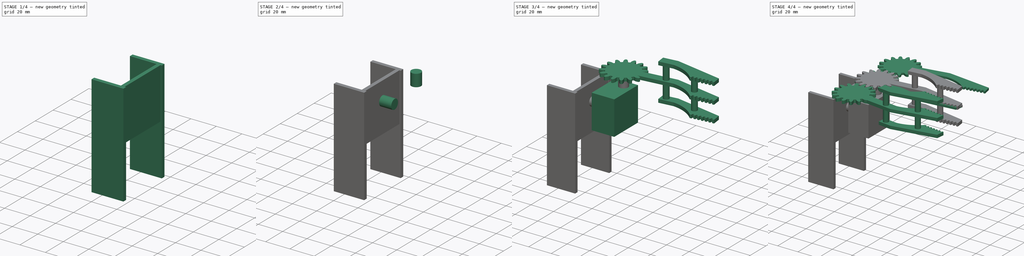
[diagram: build sequence overview — one tinted view per stage of 4, left to right]
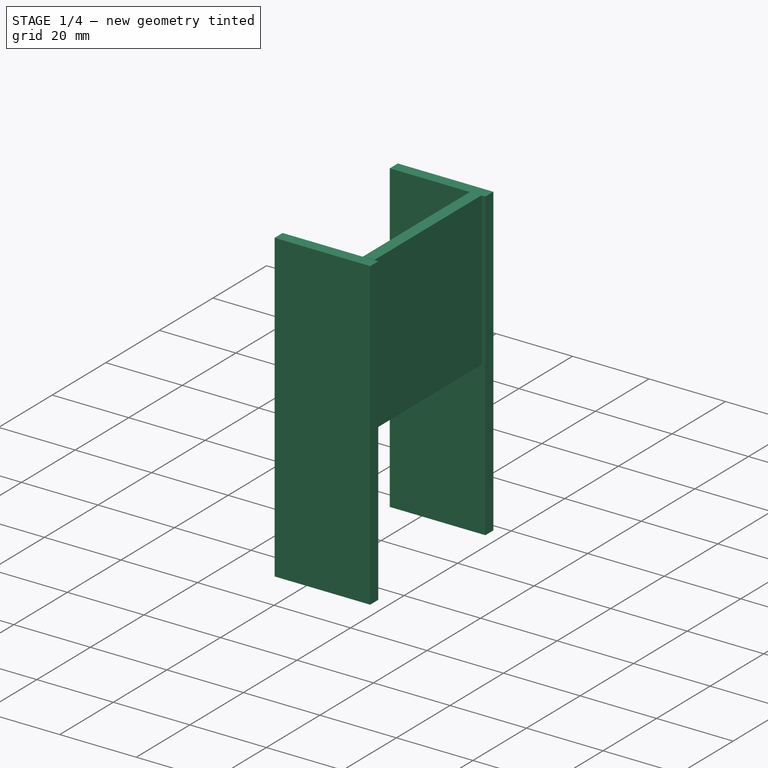
[diagram: stage 1 of 4 — iso view after this stage's code; geometry added in this stage tinted green]
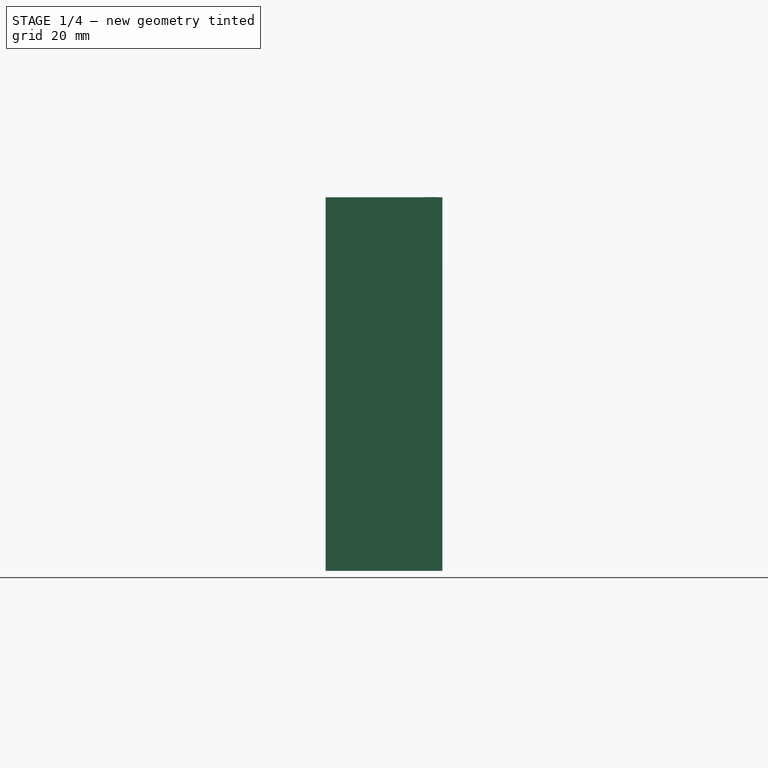
[diagram: stage 1 of 4 — front view after this stage's code; geometry added in this stage tinted green]
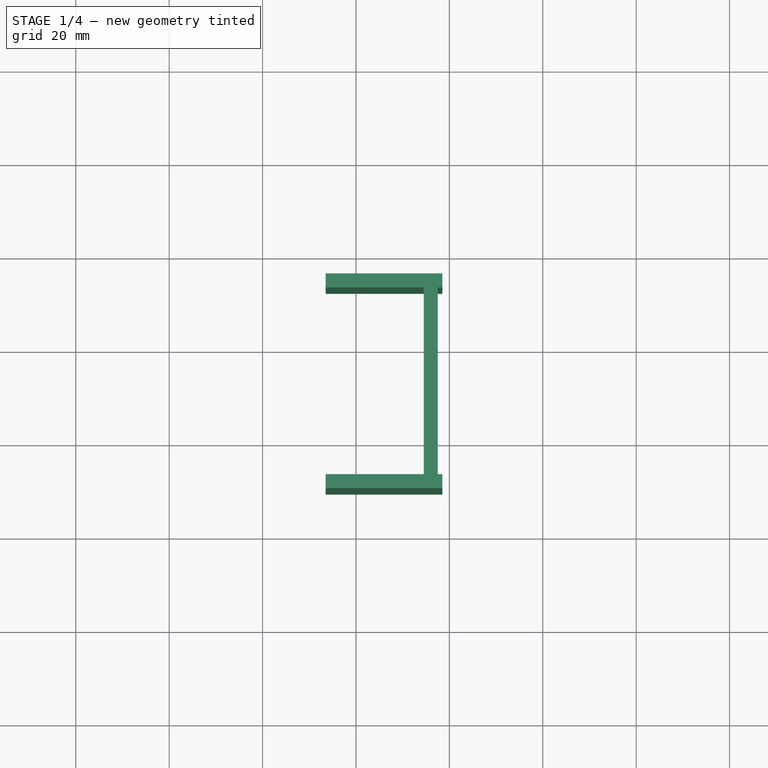
[diagram: stage 1 of 4 — top view after this stage's code; geometry added in this stage tinted green]
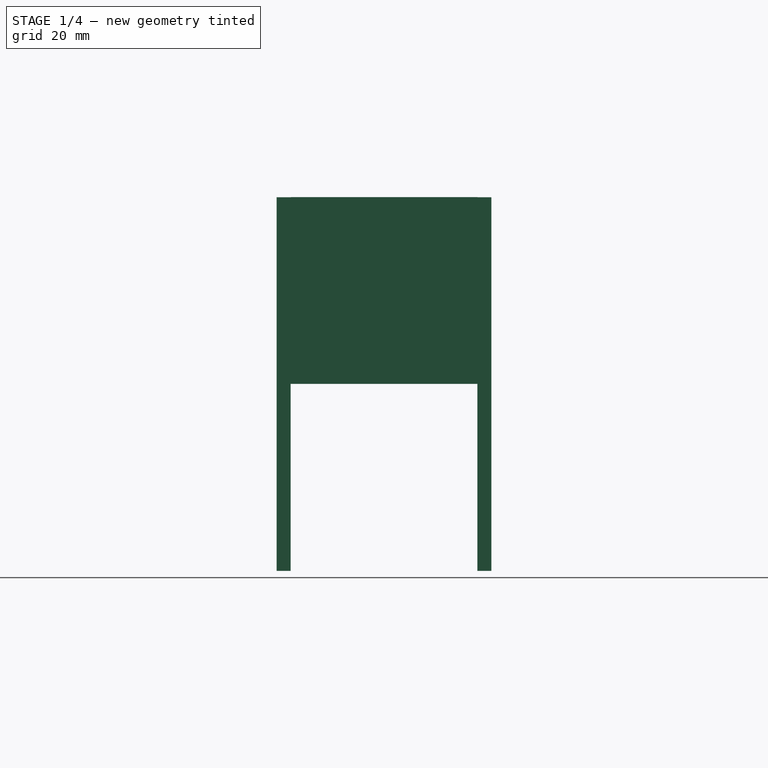
[diagram: stage 1 of 4 — right view after this stage's code; geometry added in this stage tinted green]
FCSTD DOCUMENT  (FreeCAD 0.15R4671 (Git))
Label: robotic_arm
License: All rights reserved
LicenseURL: http://en.wikipedia.org/wiki/All_rights_reserved
objects: Part::MultiFuse×6, Sketcher::SketchObject×6, PartDesign::Pad×6
note: 24 computed .brp shape members not serialized (recipe doc carries the construction recipe); baked Part::Feature solids carry a one-line shape summary decoded from their .brp

FEATURE [Sketcher::SketchObject] Sketch004
  Placement = pos=(-22.5,0,0) rot=(0.57735,-0.57735,-0.57735;2.0944rad)
  sketch-geometry (4):
    g0: LineSegment StartX=-12.5 StartY=-10 StartZ=0 EndX=27.5 EndY=-10 EndZ=0
    g1: LineSegment StartX=27.5 StartY=-10 StartZ=0 EndX=27.5 EndY=-50 EndZ=0
    g2: LineSegment StartX=27.5 StartY=-50 StartZ=0 EndX=-12.5 EndY=-50 EndZ=0
    g3: LineSegment StartX=-12.5 StartY=-50 StartZ=0 EndX=-12.5 EndY=-10 EndZ=0
  constraints (12):
    c: Coincident(g0,g1)
    c: Coincident(g1,g2)
    c: Coincident(g2,g3)
    c: Coincident(g3,g0)
    c: Horizontal(g0)
    c: Horizontal(g2)
    c: Vertical(g1)
    c: Vertical(g3)
    c: DistanceX(g0,g0) = 40
    c: DistanceY(g0,g1) = -40
    c: DistanceY(g-1,g0) = -10
    c: DistanceX(g-1,g0) = -12.5
FEATURE [PartDesign::Pad] Pad003
  Length = 3
  Length2 = 100
  Placement = pos=(-22.5,0,0) rot=(0.57735,-0.57735,-0.57735;2.0944rad)
  Sketch = -> Sketch004
  Type = 0
FEATURE [Sketcher::SketchObject] Sketch005
  Placement = pos=(0,12.5,0) rot=(1,0,0;1.5708rad)
  sketch-geometry (4):
    g0: LineSegment StartX=-21.5 StartY=-10.0415 StartZ=0 EndX=-46.5 EndY=-10.0415 EndZ=0
    g1: LineSegment StartX=-46.5 StartY=-10.0415 StartZ=0 EndX=-46.5 EndY=-90.0415 EndZ=0
    g2: LineSegment StartX=-46.5 StartY=-90.0415 StartZ=0 EndX=-21.5 EndY=-90.0415 EndZ=0
    g3: LineSegment StartX=-21.5 StartY=-90.0415 StartZ=0 EndX=-21.5 EndY=-10.0415 EndZ=0
  constraints (11):
    c: Coincident(g0,g1)
    c: Coincident(g1,g2)
    c: Coincident(g2,g3)
    c: Coincident(g3,g0)
    c: Horizontal(g0)
    c: Horizontal(g2)
    c: Vertical(g1)
    c: Vertical(g3)
    c: DistanceY(g0,g2) = -80
    c: DistanceX(g0,g0) = 25
    c: DistanceX(g-1,g0) = -21.5
FEATURE [Sketcher::SketchObject] Sketch006
  Placement = pos=(0,-27.5,0) rot=(1,0,0;1.5708rad)
  sketch-geometry (4):
    g0: LineSegment StartX=-21.5 StartY=-10.0415 StartZ=0 EndX=-46.5 EndY=-10.0415 EndZ=0
    g1: LineSegment StartX=-46.5 StartY=-10.0415 StartZ=0 EndX=-46.5 EndY=-90.0415 EndZ=0
    g2: LineSegment StartX=-46.5 StartY=-90.0415 StartZ=0 EndX=-21.5 EndY=-90.0415 EndZ=0
    g3: LineSegment StartX=-21.5 StartY=-90.0415 StartZ=0 EndX=-21.5 EndY=-10.0415 EndZ=0
  constraints (11):
    c: Coincident(g0,g1)
    c: Coincident(g1,g2)
    c: Coincident(g2,g3)
    c: Coincident(g3,g0)
    c: Horizontal(g0)
    c: Horizontal(g2)
    c: Vertical(g1)
    c: Vertical(g3)
    c: DistanceY(g0,g2) = -80
    c: DistanceX(g0,g0) = 25
    c: DistanceX(g-1,g0) = -21.5
FEATURE [PartDesign::Pad] Pad004
  Length = 3
  Length2 = 100
  Placement = pos=(0,12.5,0) rot=(1,0,0;1.5708rad)
  Reversed = true
  Sketch = -> Sketch005
  Type = 0
FEATURE [PartDesign::Pad] Pad005
  Length = 3
  Length2 = 100
  Placement = pos=(0,-27.5,0) rot=(1,0,0;1.5708rad)
  Sketch = -> Sketch006
  Type = 0
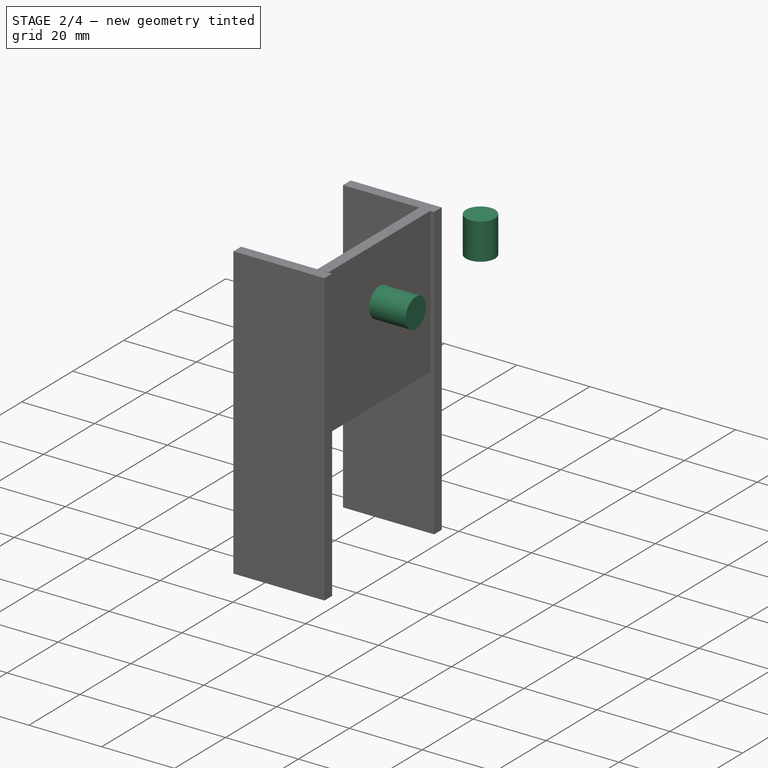
[diagram: stage 2 of 4 — iso view after this stage's code; geometry added in this stage tinted green]
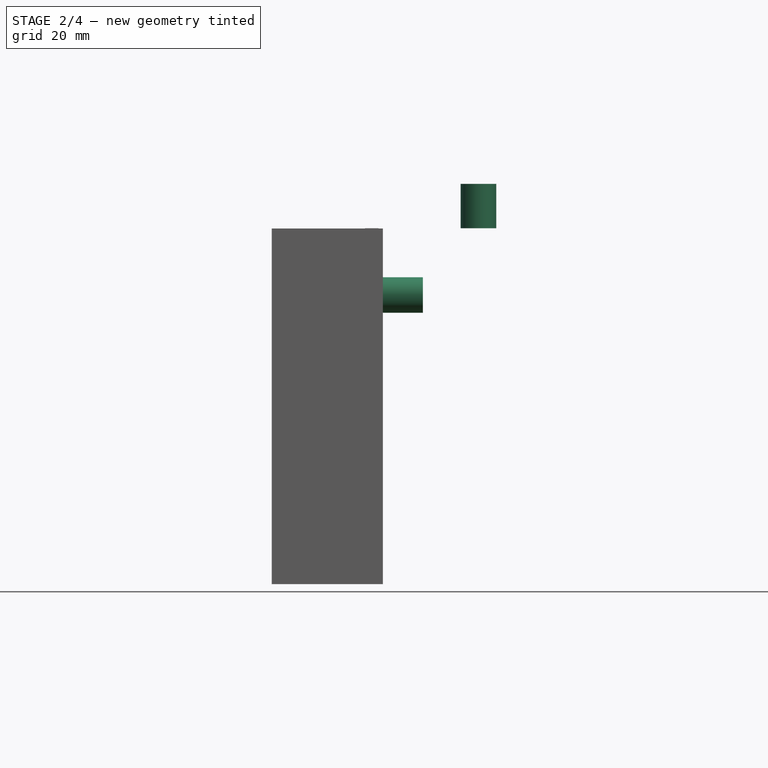
[diagram: stage 2 of 4 — front view after this stage's code; geometry added in this stage tinted green]
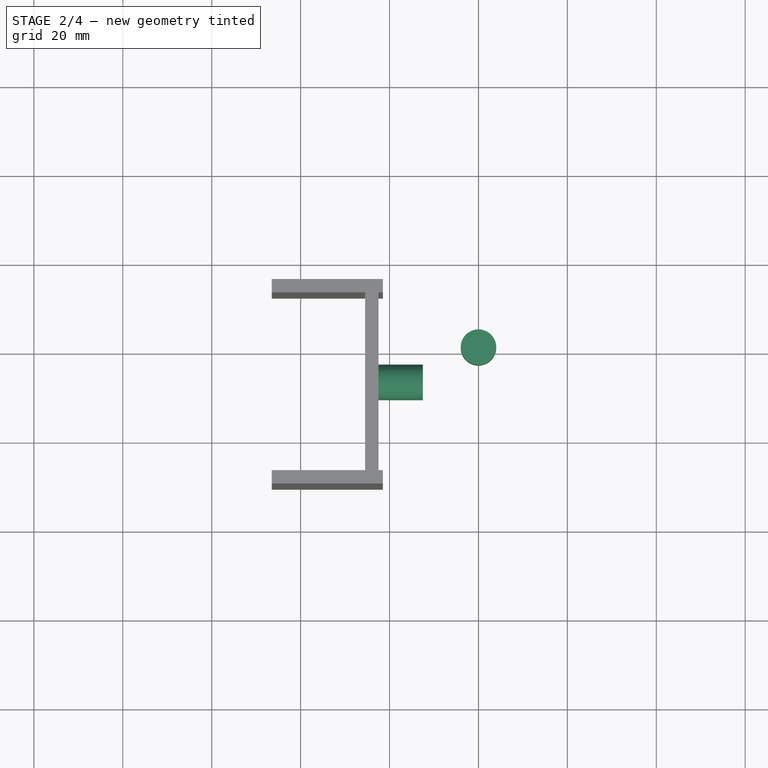
[diagram: stage 2 of 4 — top view after this stage's code; geometry added in this stage tinted green]
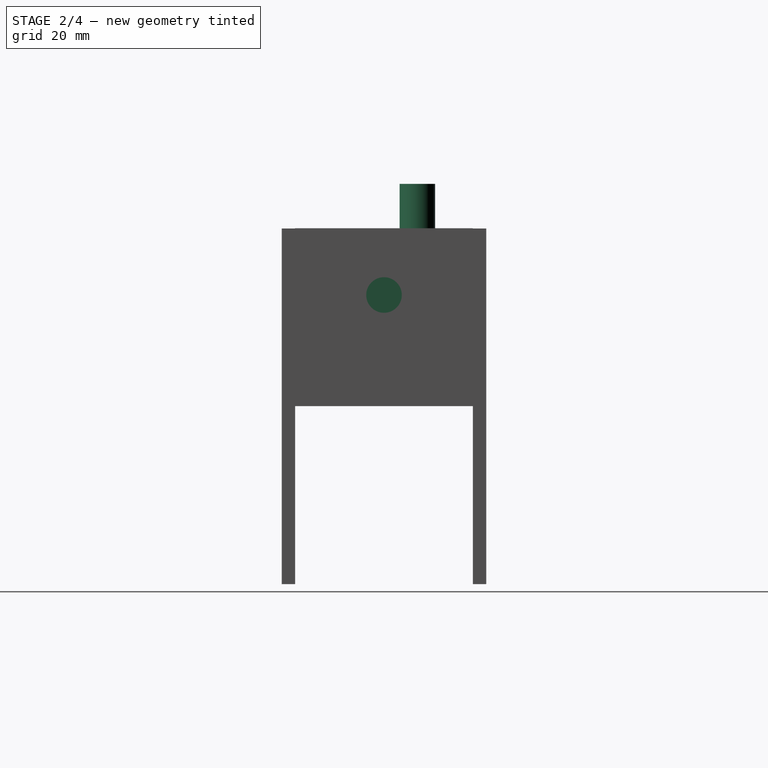
[diagram: stage 2 of 4 — right view after this stage's code; geometry added in this stage tinted green]
FEATURE [PartDesign::Pad] Pad001
  Length = 10
  Length2 = 100
  Placement = pos=(0,0,-10) rot=(0,0,1;0rad)
  Sketch = -> Sketch002
  Type = 0
FEATURE [Sketcher::SketchObject] Sketch003
  Placement = pos=(-12.5,0,0) rot=(0.57735,-0.57735,-0.57735;2.0944rad)
  sketch-geometry (2):
    g0: GeomPoint [constr] X=7.5 Y=-25 Z=0
    g1: Circle CenterX=7.5 CenterY=-25 CenterZ=0 NormalX=0 NormalY=0 NormalZ=1 Radius=4
  constraints (3):
    c: DistanceY(g-1,g0) = -25
    c: DistanceX(g-1,g0) = 7.5
    c: Radius(g1) = 4
FEATURE [PartDesign::Pad] Pad002
  Length = 10
  Length2 = 100
  Placement = pos=(-12.5,0,0) rot=(0.57735,-0.57735,-0.57735;2.0944rad)
  Sketch = -> Sketch003
  Type = 0
FEATURE [Part::MultiFuse] Fusion005
  Shapes = -> [Pad005,Pad004,Pad002,Pad003]
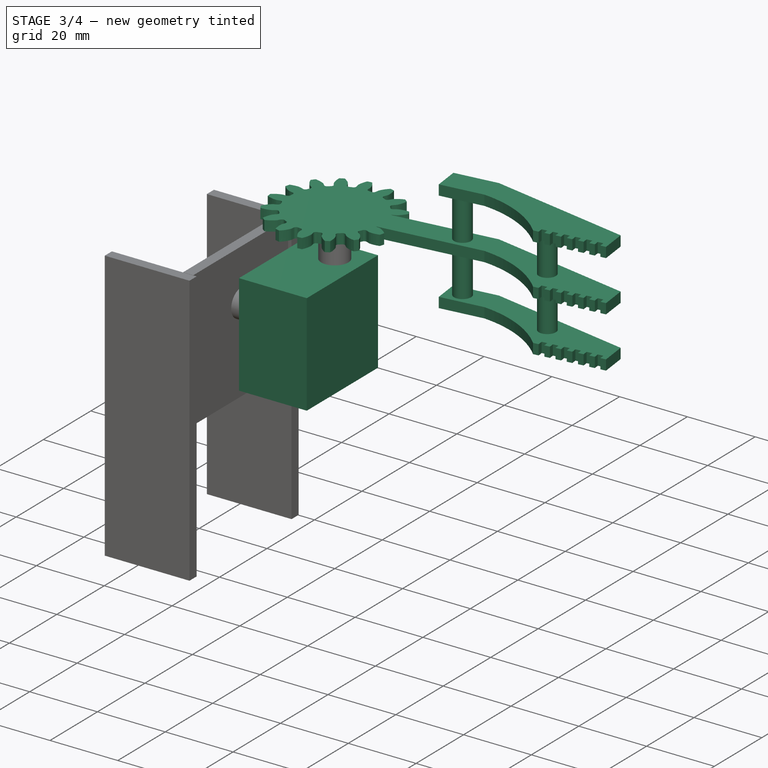
[diagram: stage 3 of 4 — iso view after this stage's code; geometry added in this stage tinted green]
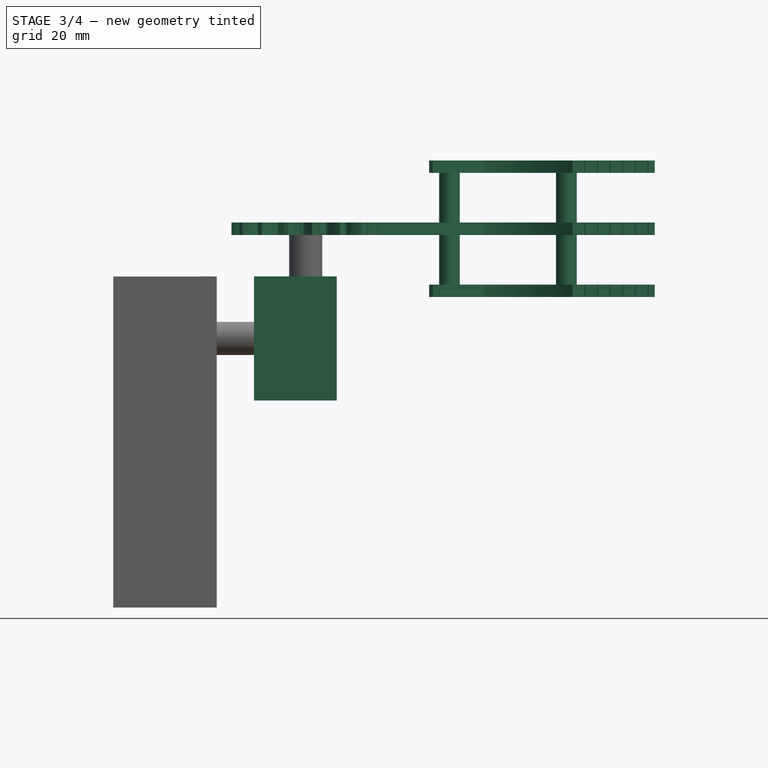
[diagram: stage 3 of 4 — front view after this stage's code; geometry added in this stage tinted green]
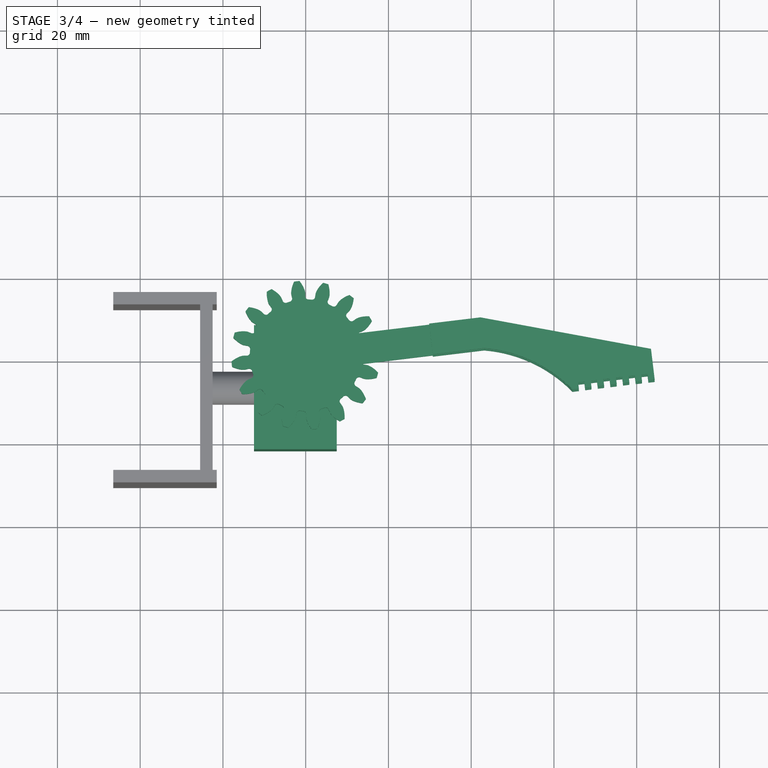
[diagram: stage 3 of 4 — top view after this stage's code; geometry added in this stage tinted green]
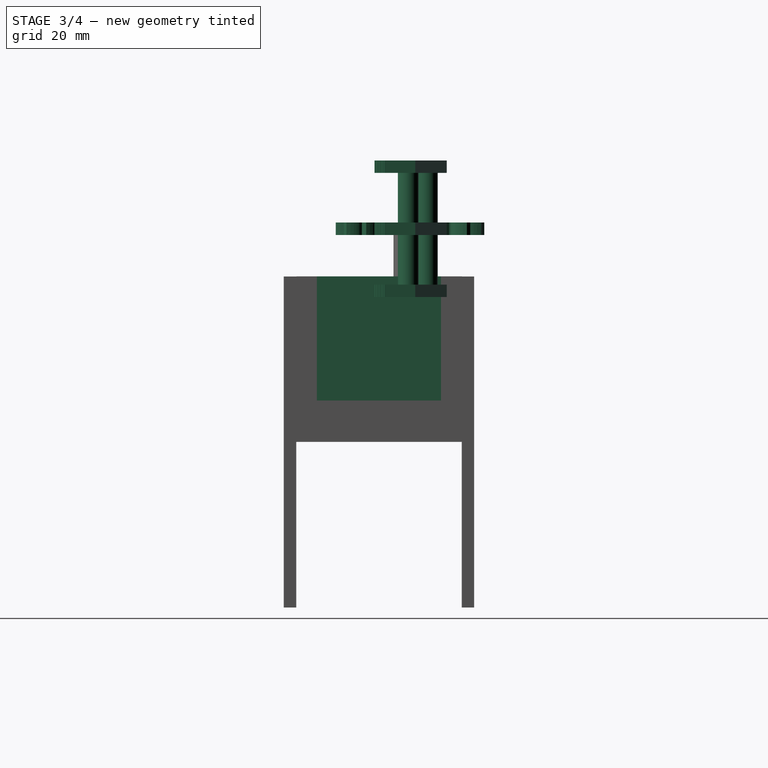
[diagram: stage 3 of 4 — right view after this stage's code; geometry added in this stage tinted green]
FEATURE [Sketcher::SketchObject] Sketch
  Placement = pos=(7.5,0,0) rot=(0.57735,0.57735,0.57735;2.0944rad)
  sketch-geometry (4):
    g0: LineSegment StartX=7.5 StartY=-10 StartZ=0 EndX=-22.5 EndY=-10 EndZ=0
    g1: LineSegment StartX=-22.5 StartY=-10 StartZ=0 EndX=-22.5 EndY=-40 EndZ=0
    g2: LineSegment StartX=-22.5 StartY=-40 StartZ=0 EndX=7.5 EndY=-40 EndZ=0
    g3: LineSegment StartX=7.5 StartY=-40 StartZ=0 EndX=7.5 EndY=-10 EndZ=0
  constraints (12):
    c: Coincident(g0,g1)
    c: Coincident(g1,g2)
    c: Coincident(g2,g3)
    c: Coincident(g3,g0)
    c: Horizontal(g0)
    c: Horizontal(g2)
    c: Vertical(g1)
    c: Vertical(g3)
    c: DistanceY(g0,g2) = -30
    c: DistanceX(g1,g2) = 30
    c: DistanceX(g-1,g0) = 7.5
    c: DistanceY(g-1,g0) = -10
FEATURE [Part::MultiFuse] Fusion003  label="left_hand001"
  Placement = pos=(0,0,0) rot=(0,0,1;0.120428rad)
FEATURE [Sketcher::SketchObject] Sketch002
  Placement = pos=(0,0,-10) rot=(0,0,1;0rad)
  sketch-geometry (1):
    g0: Circle CenterX=0 CenterY=0 CenterZ=0 NormalX=0 NormalY=0 NormalZ=1 Radius=4
  constraints (2):
    c: Coincident(g0,g-1)
    c: Radius(g0) = 4
FEATURE [PartDesign::Pad] Pad
  Length = 20
  Length2 = 100
  Placement = pos=(7.5,0,0) rot=(0.57735,0.57735,0.57735;2.0944rad)
  Reversed = true
  Sketch = -> Sketch
  Type = 0
FEATURE [Part::MultiFuse] Fusion004
  Shapes = -> [Pad,Pad001]
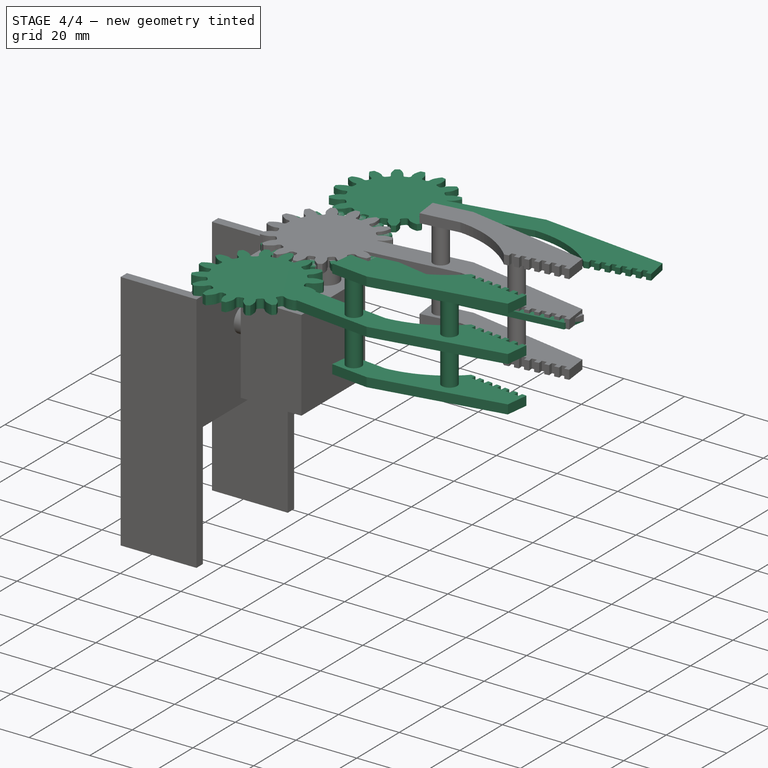
[diagram: stage 4 of 4 — iso view after this stage's code; geometry added in this stage tinted green]
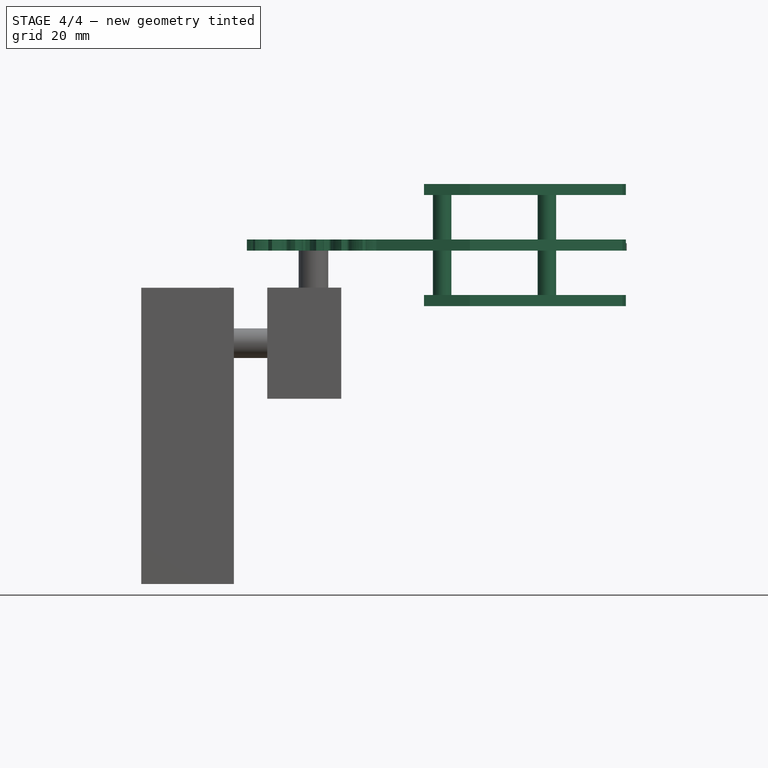
[diagram: stage 4 of 4 — front view after this stage's code; geometry added in this stage tinted green]
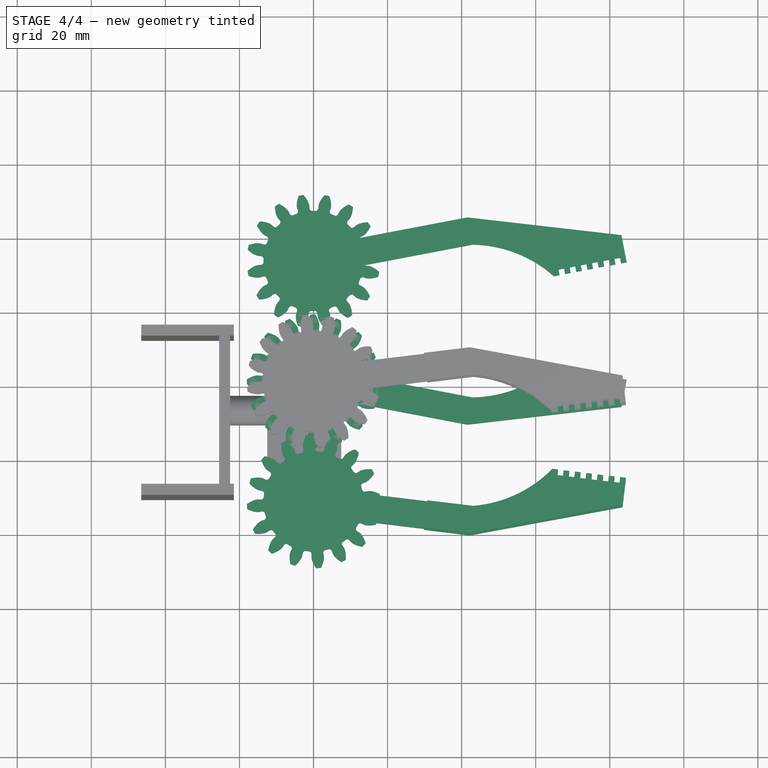
[diagram: stage 4 of 4 — top view after this stage's code; geometry added in this stage tinted green]
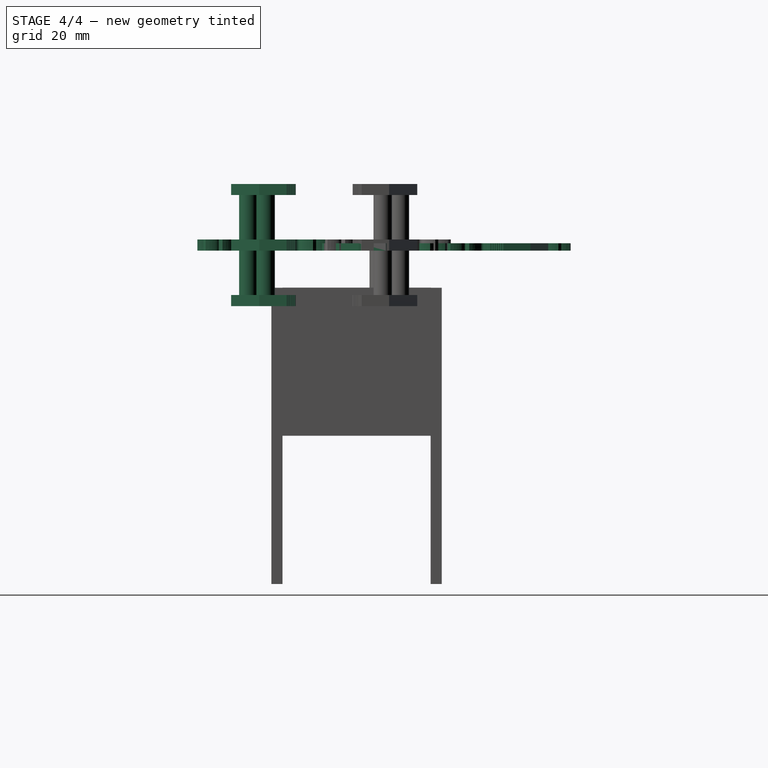
[diagram: stage 4 of 4 — right view after this stage's code; geometry added in this stage tinted green]
FEATURE [Part::MultiFuse] Fusion001  label="right_hand"
  Placement = pos=(0,0,0) rot=(0,0,-1;0.188496rad)
FEATURE [Part::MultiFuse] Fusion  label="left_hand"
  Placement = pos=(0,32.5,0) rot=(0,0,1;0.188496rad)
FEATURE [Part::MultiFuse] Fusion002  label="right_hand001"
  Placement = pos=(0,-32.5,0) rot=(0,0,-1;0.120428rad)
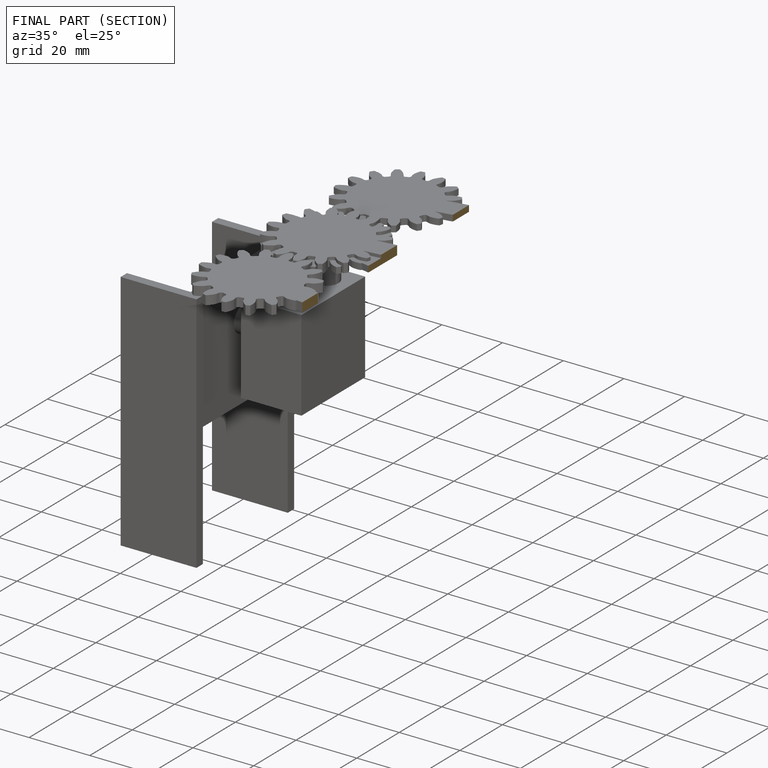
[diagram: finished part — half-section view (interior)]
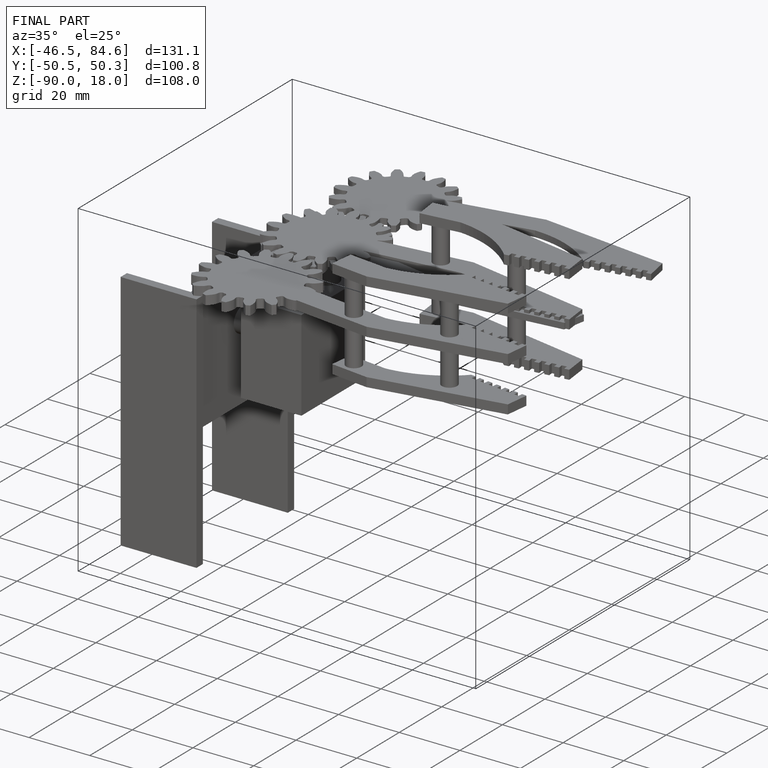
[diagram: finished part — iso view with bounding-box wireframe]
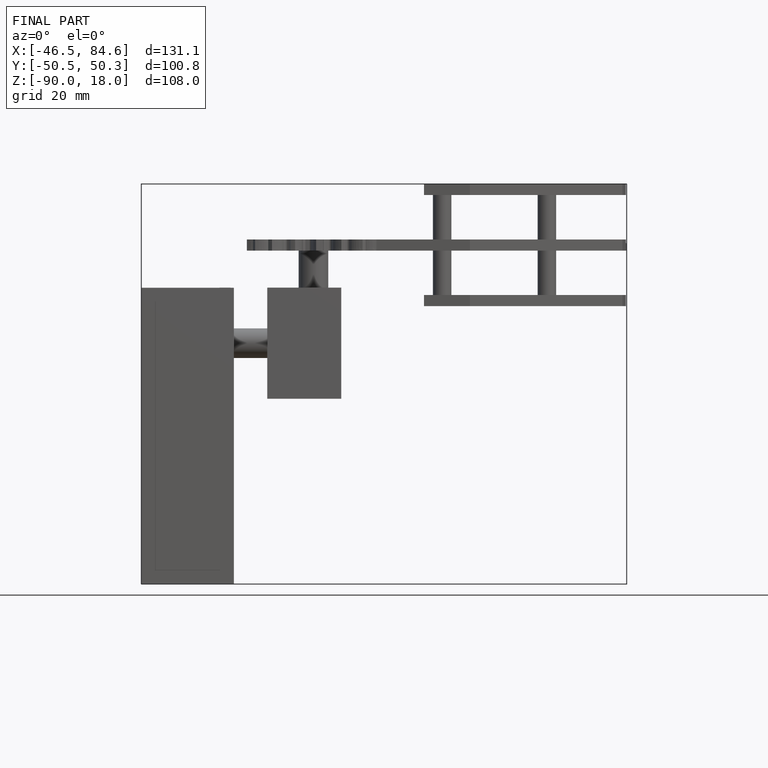
[diagram: finished part — front view with bounding-box wireframe]
